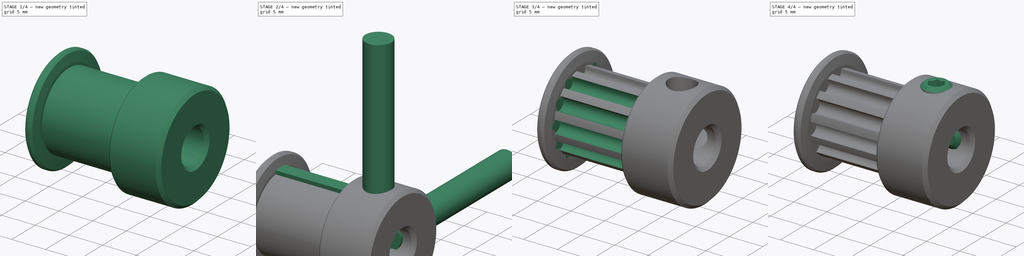
[diagram: build sequence overview — one tinted view per stage of 4, left to right]
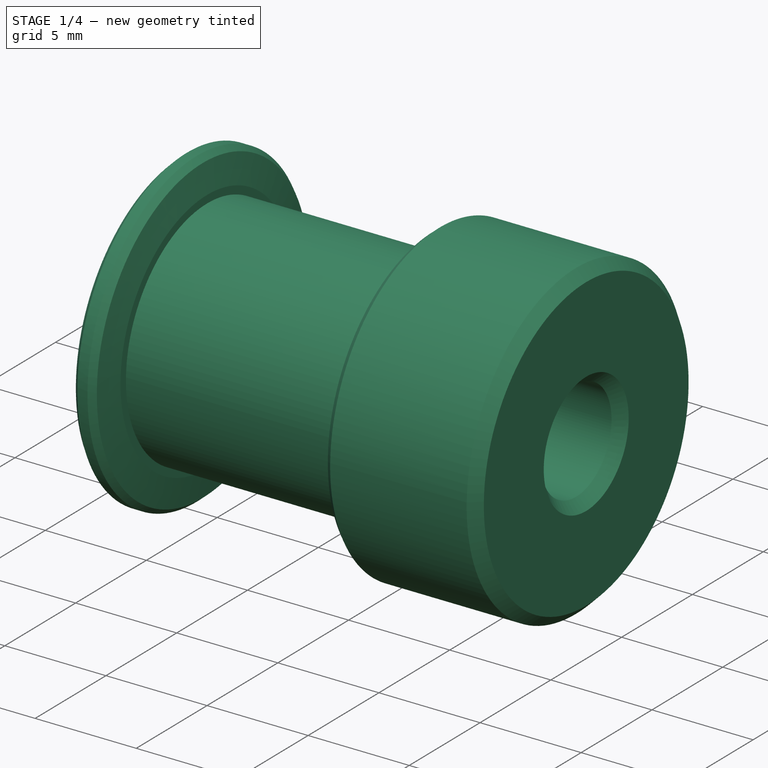
[diagram: stage 1 of 4 — iso view after this stage's code; geometry added in this stage tinted green]
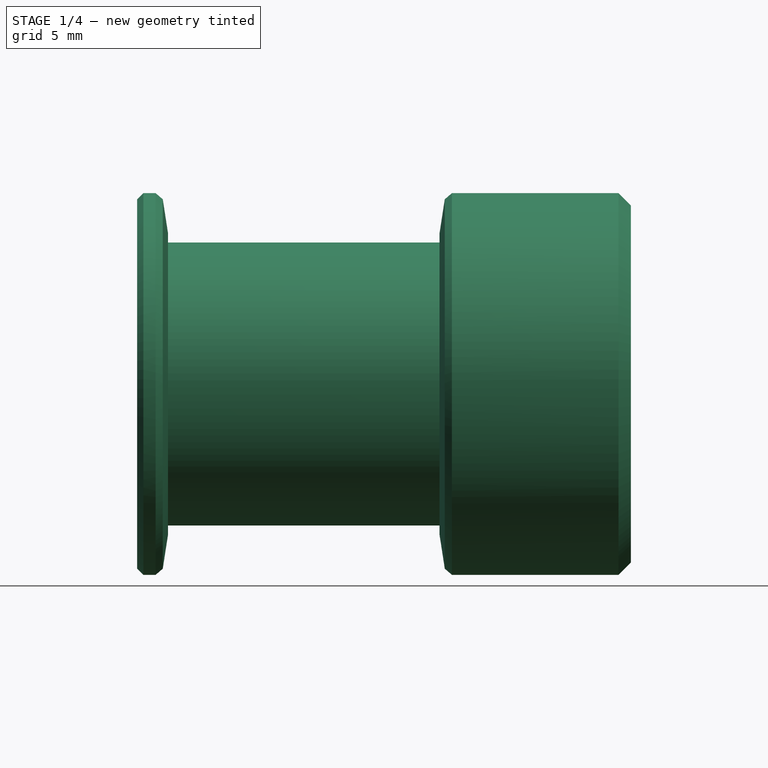
[diagram: stage 1 of 4 — front view after this stage's code; geometry added in this stage tinted green]
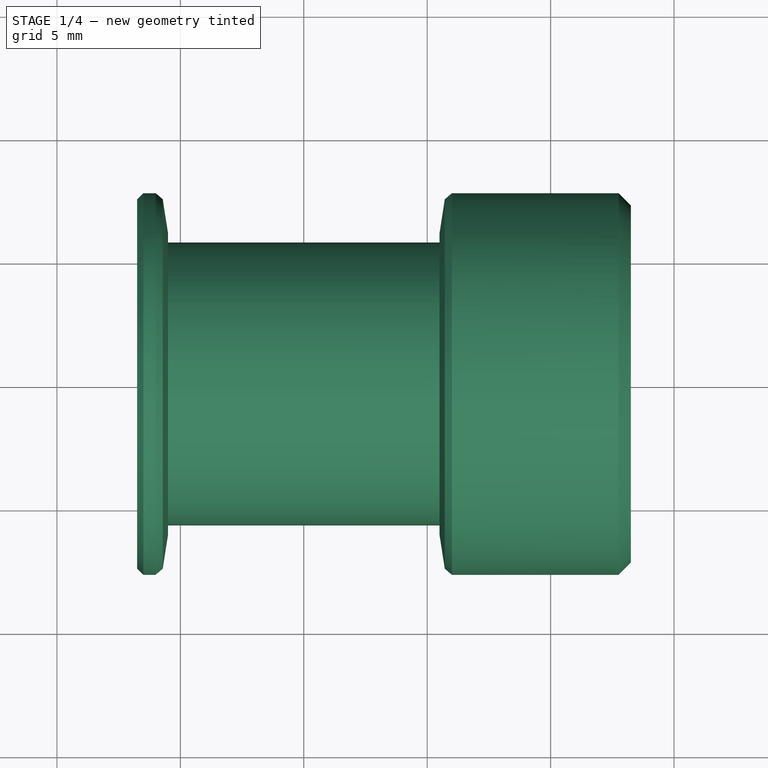
[diagram: stage 1 of 4 — top view after this stage's code; geometry added in this stage tinted green]
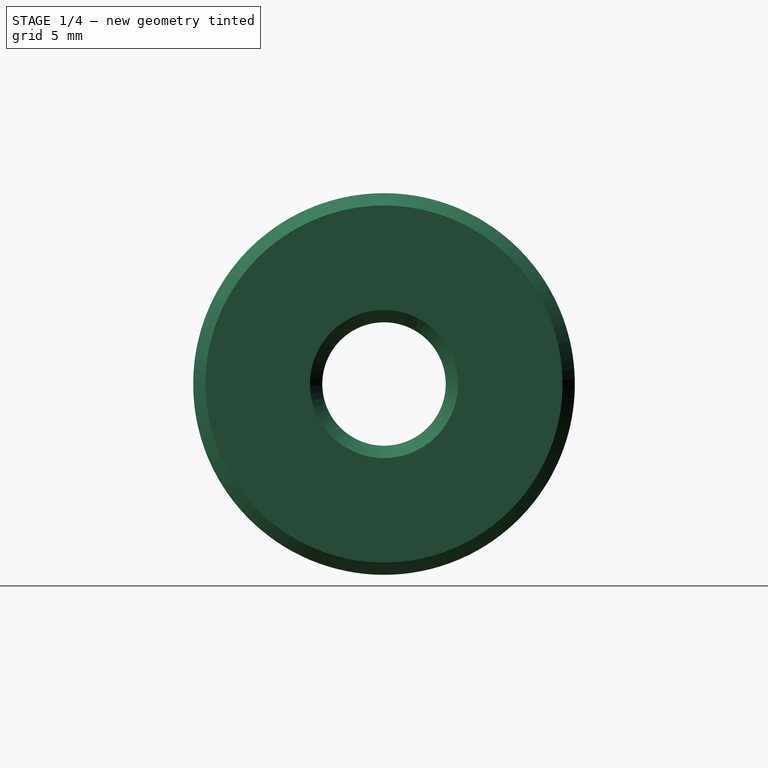
[diagram: stage 1 of 4 — right view after this stage's code; geometry added in this stage tinted green]
FCSTD DOCUMENT  (FreeCAD 0.21R33771 (Git))
Label: HTD 3M 12 Tooth Pulley 5mm Bore
License: All rights reserved
LicenseURL: http://en.wikipedia.org/wiki/All_rights_reserved
objects: Part::FeaturePython×3, Part::Cylinder×2, Sketcher::SketchObject×2, PartDesign::Chamfer×2, PartDesign::Body×2, Part::Cut×2, Part::MultiFuse×1, PartDesign::Revolution×1, PartDesign::Pad×1, Part::Chamfer×1, App::TextDocument×1
note: 21 computed .brp shape members not serialized (recipe doc carries the construction recipe); baked Part::Feature solids carry a one-line shape summary decoded from their .brp

FEATURE [Sketcher::SketchObject] Sketch
  FullyConstrained = true
  MapMode = 5
  Placement = pos=(0,0,0) rot=(1,0,0;1.5708rad)
  Support = -> [XZ_Plane001]
  sketch-geometry (11):
    g0: LineSegment StartX=-6.75 StartY=2.5 StartZ=0 EndX=13.25 EndY=2.5 EndZ=0
    g1: LineSegment StartX=5.5 StartY=5.73 StartZ=0 EndX=-5.5 EndY=5.73 EndZ=0
    g2: LineSegment StartX=-5.75 StartY=7.73 StartZ=0 EndX=-6.75 EndY=7.73 EndZ=0
    g3: LineSegment StartX=-6.75 StartY=7.73 StartZ=0 EndX=-6.75 EndY=2.5 EndZ=0
    g4: LineSegment StartX=-5.5 StartY=6.111 StartZ=0 EndX=5.5 EndY=6.111 EndZ=0
    g5: LineSegment StartX=5.5 StartY=5.73 StartZ=0 EndX=5.5 EndY=6.111 EndZ=0
    g6: LineSegment StartX=5.5 StartY=6.111 StartZ=0 EndX=5.75 EndY=7.73 EndZ=0
    g7: LineSegment StartX=-5.75 StartY=7.73 StartZ=0 EndX=-5.5 EndY=6.111 EndZ=0
    g8: LineSegment StartX=-5.5 StartY=6.111 StartZ=0 EndX=-5.5 EndY=5.73 EndZ=0
    g9: LineSegment StartX=5.75 StartY=7.73 StartZ=0 EndX=13.25 EndY=7.73 EndZ=0
    g10: LineSegment StartX=13.25 StartY=7.73 StartZ=0 EndX=13.25 EndY=2.5 EndZ=0
  constraints (32):
    c: Symmetric(g1,g1,g-2)
    c: Symmetric(g2,g6,g-2)
    c: DistanceY(g-1,g0) = 2.5
    c: DistanceX(g1,g1) = 11
    c: DistanceX(g2,g2) = 1
    c: Coincident(g3,g0)
    c: Vertical(g3)
    c: Horizontal(g4)
    c: Coincident(g5,g1)
    c: Vertical(g5)
    c: Coincident(g6,g5)
    c: Coincident(g4,g5)
    c: Coincident(g7,g2)
    c: Coincident(g8,g7)
    c: Coincident(g8,g1)
    c: Coincident(g4,g7)
    c: Vertical(g8)
    c: DistanceY(g-1,g1) = 5.73
    c: Horizontal(g9)
    c: Coincident(g9,g10)
    c: Vertical(g10)
    c: Horizontal(g0)
    c: Coincident(g0,g10)
    c: DistanceX(g2,g7) = 1.25
    c: DistanceX(g0,g0) = 20
    c: DistanceY(g1,g7) = 0.381
    c: DistanceY(g1,g2) = 2
    c: Coincident(g9,g6)
    c: Coincident(g3,g2)
    c: Horizontal(g2)
    c: DistanceY(g-1,g9) = 7.73
    c: DistanceX(g0,g0) = 20
FEATURE [PartDesign::Revolution] Revolution
  AllowMultiFace = false
  Angle = 360
  Axis = (1,0,0)
  Base = (0,0,0)
  Placement = pos=(0,0,0) rot=(1,0,0;1.5708rad)
  Profile = -> Sketch
  ReferenceAxis = -> Sketch [H_Axis]
FEATURE [PartDesign::Chamfer] Chamfer
  Angle = 45
  Base = -> Revolution [Edge4,Edge5,Edge7]
  BaseFeature = -> Revolution
  ChamferType = 0
  FlipDirection = false
  Placement = pos=(0,0,0) rot=(1,0,0;1.5708rad)
  Size = 0.5
  Size2 = 1
  SupportTransform = false
  UseAllEdges = false
FEATURE [PartDesign::Chamfer] Chamfer002
  Angle = 45
  Base = -> Chamfer [Edge2,Edge5,Edge21]
  BaseFeature = -> Chamfer
  ChamferType = 0
  FlipDirection = false
  Placement = pos=(0,0,0) rot=(1,0,0;1.5708rad)
  Size = 0.25
  Size2 = 1
  SupportTransform = false
  UseAllEdges = false
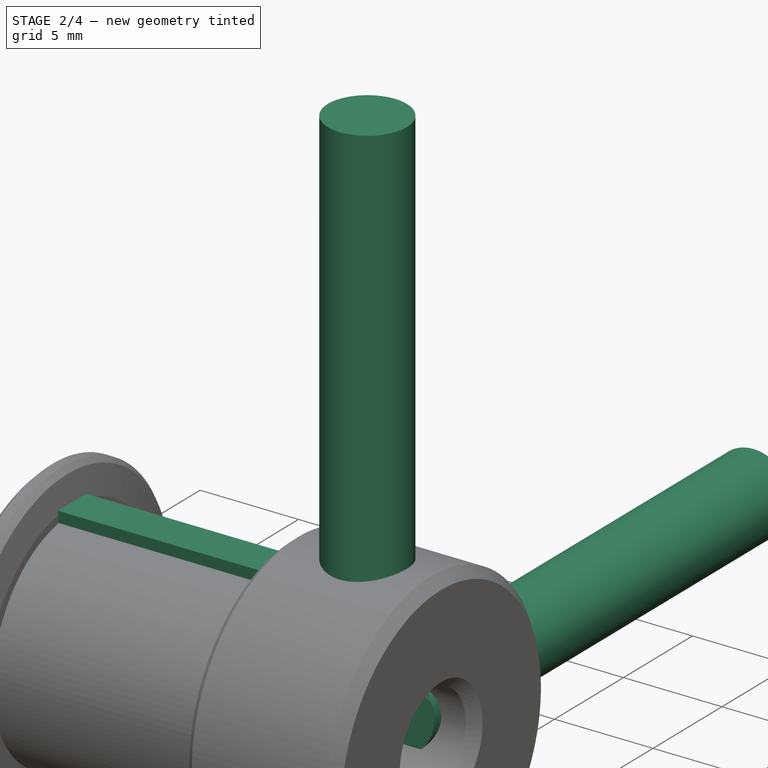
[diagram: stage 2 of 4 — iso view after this stage's code; geometry added in this stage tinted green]
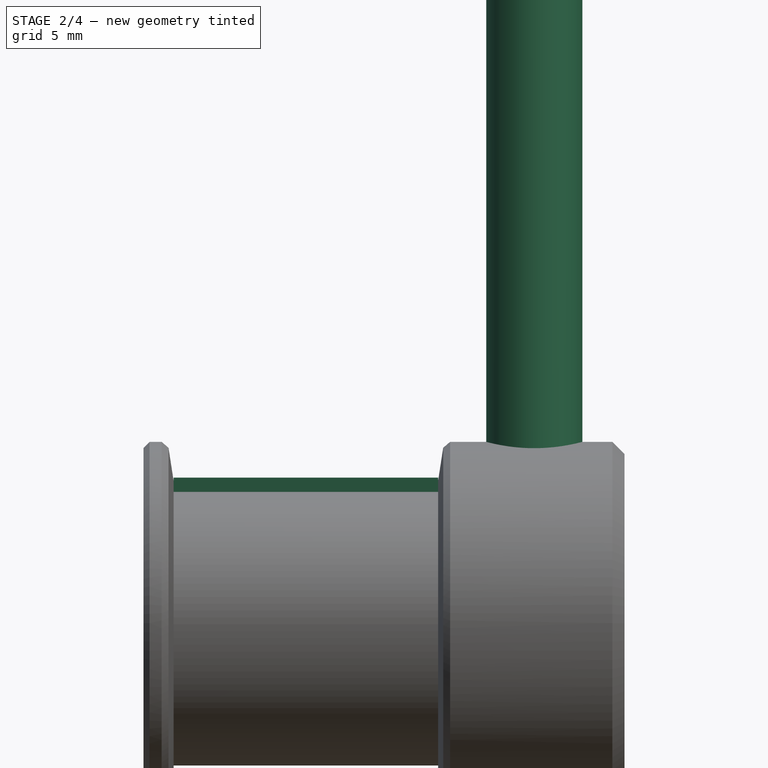
[diagram: stage 2 of 4 — front view after this stage's code; geometry added in this stage tinted green]
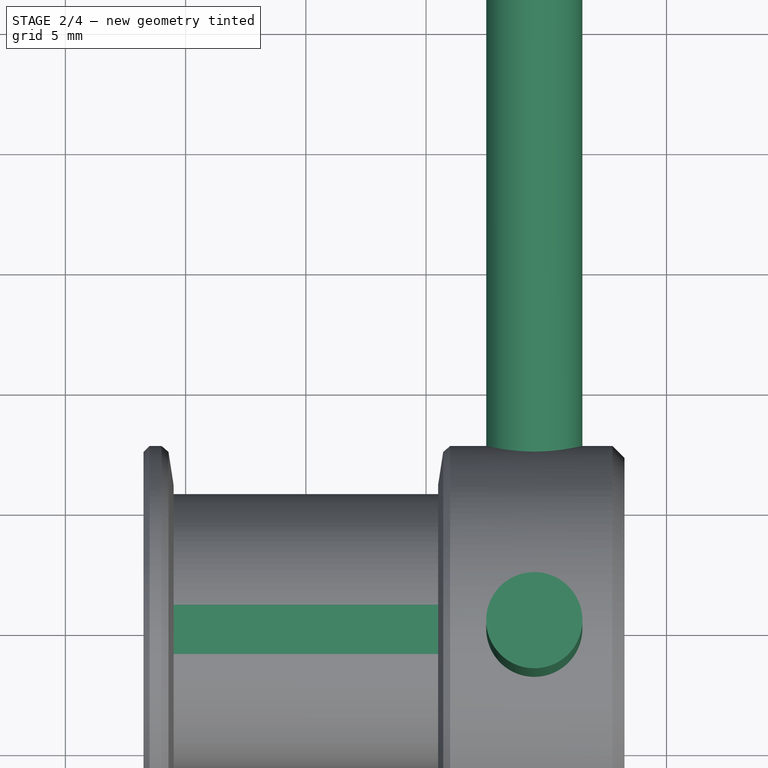
[diagram: stage 2 of 4 — top view after this stage's code; geometry added in this stage tinted green]
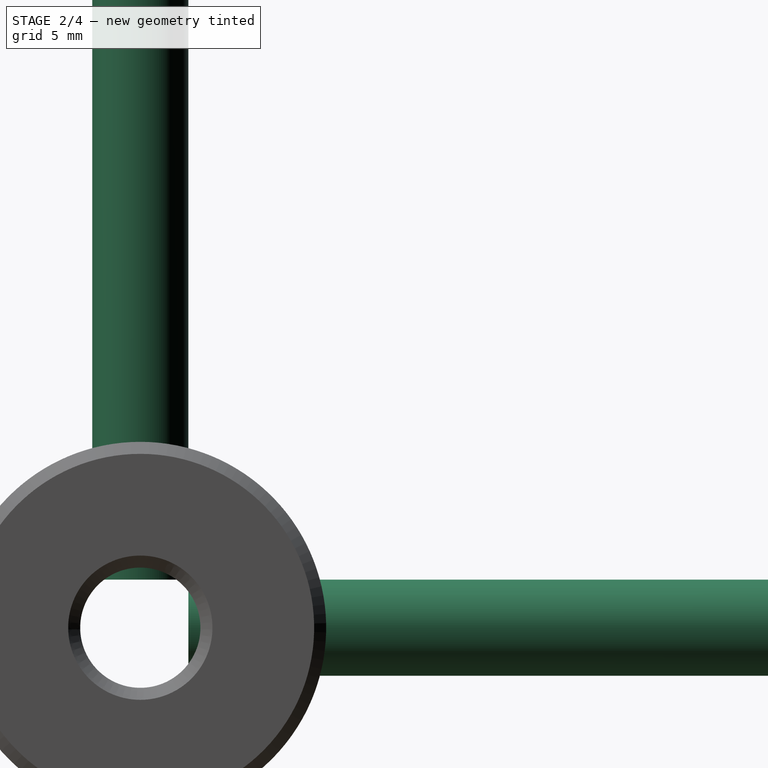
[diagram: stage 2 of 4 — right view after this stage's code; geometry added in this stage tinted green]
FEATURE [Part::Cylinder] Cylinder
  Angle = 360
  AttacherType = Attacher::AttachEngine3D
  FirstAngle = 0
  Height = 26
  Placement = pos=(9.5,0,2) rot=(0,0,1;0rad)
  Radius = 2
  SecondAngle = 0
FEATURE [Part::Cylinder] Cylinder001
  Angle = 360
  AttacherType = Attacher::AttachEngine3D
  FirstAngle = 0
  Height = 26
  Placement = pos=(9.5,2,0) rot=(-1,0,0;1.5708rad)
  Radius = 2
  SecondAngle = 0
FEATURE [Sketcher::SketchObject] Sketch001
  FullyConstrained = true
  MapMode = 5
  Placement = pos=(0,0,0) rot=(0.57735,0.57735,0.57735;2.0944rad)
  Support = -> [YZ_Plane002]
  sketch-geometry (5):
    g0: ArcOfCircle CenterX=0 CenterY=5.36 CenterZ=0 NormalX=0 NormalY=0 NormalZ=1 AngleXU=0 Radius=0.91 StartAngle=3.26377 EndAngle=6.16101
    g1: LineSegment StartX=-0.903217 StartY=5.2491 StartZ=0 EndX=-1.02509 EndY=6.24165 EndZ=0
    g2: LineSegment StartX=-1.02509 StartY=6.24165 StartZ=0 EndX=1.02509 EndY=6.24165 EndZ=0
    g3: LineSegment StartX=1.02509 StartY=6.24165 StartZ=0 EndX=0.903217 EndY=5.2491 EndZ=0
    g4: LineSegment StartX=0 StartY=4.45 StartZ=0 EndX=0 EndY=5.73 EndZ=0
  constraints (14):
    c: PointOnObject(g0,g-2)
    c: Coincident(g2,g1)
    c: Coincident(g3,g2)
    c: Tangent(g0,g3) = 1.5708
    c: Tangent(g0,g1) = 1.5708
    c: Symmetric(g1,g2,g-2)
    c: Angle(g3,g1) = 0.244346
    c: Radius(g0) = 0.91
    c: Distance(g3) = 1
    c: PointOnObject(g4,g0)
    c: Vertical(g4)
    c: PointOnObject(g4,g-2)
    c: DistanceY(g4,g4) = 1.28
    c: DistanceY(g-1,g4) = 5.73
FEATURE [PartDesign::Pad] Pad
  AllowMultiFace = false
  Direction = (1,-2e-16,3e-16)
  Length = 11
  Length2 = 100
  Midplane = true
  Placement = pos=(0,0,0) rot=(0.57735,0.57735,0.57735;2.0944rad)
  Profile = -> Sketch001
  Type = 0
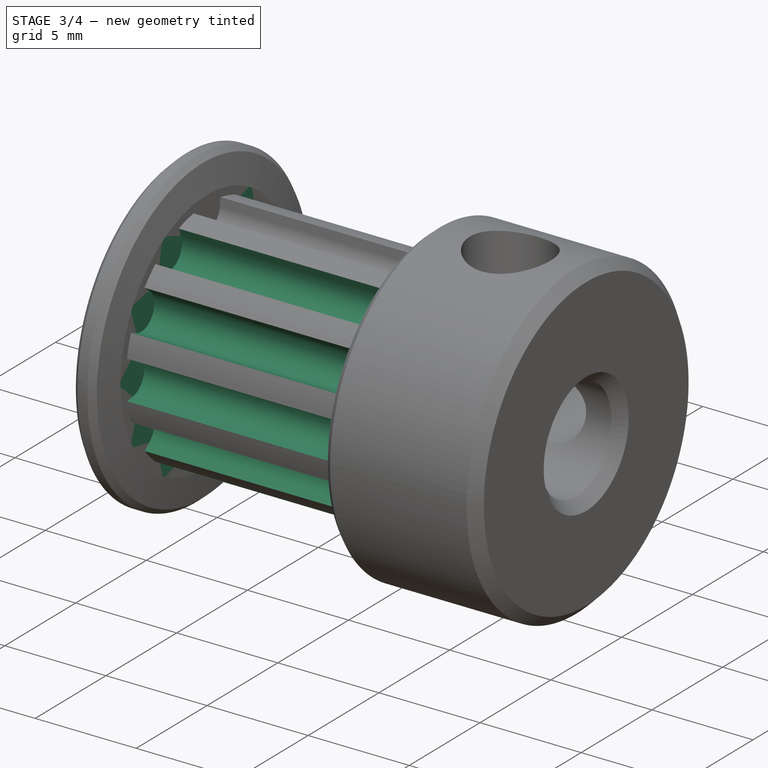
[diagram: stage 3 of 4 — iso view after this stage's code; geometry added in this stage tinted green]
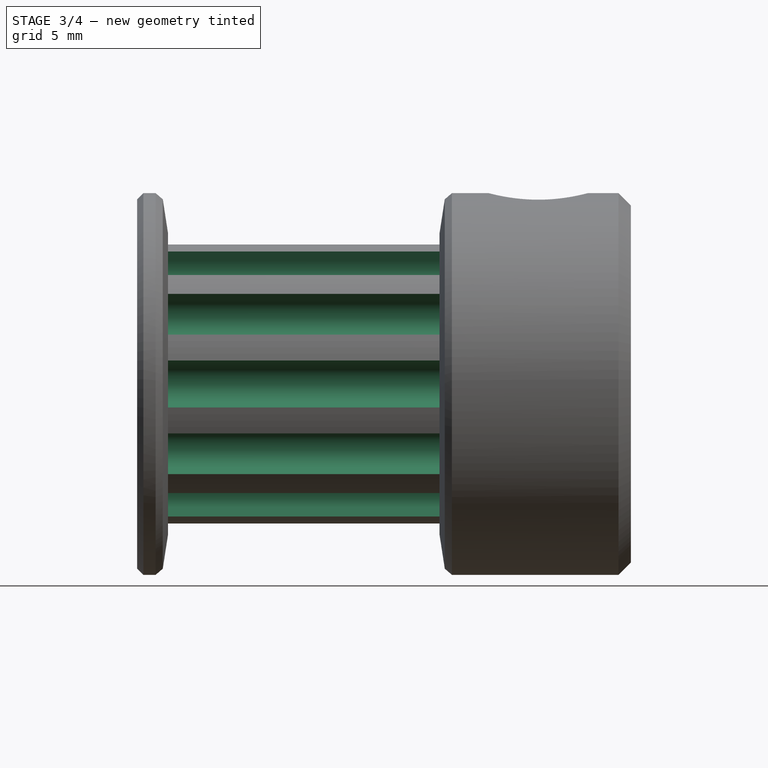
[diagram: stage 3 of 4 — front view after this stage's code; geometry added in this stage tinted green]
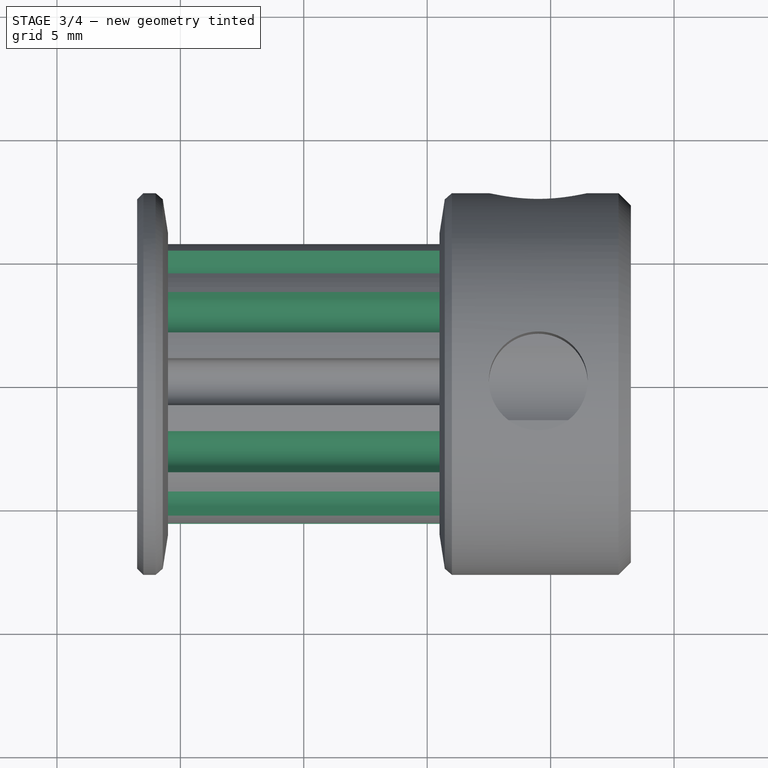
[diagram: stage 3 of 4 — top view after this stage's code; geometry added in this stage tinted green]
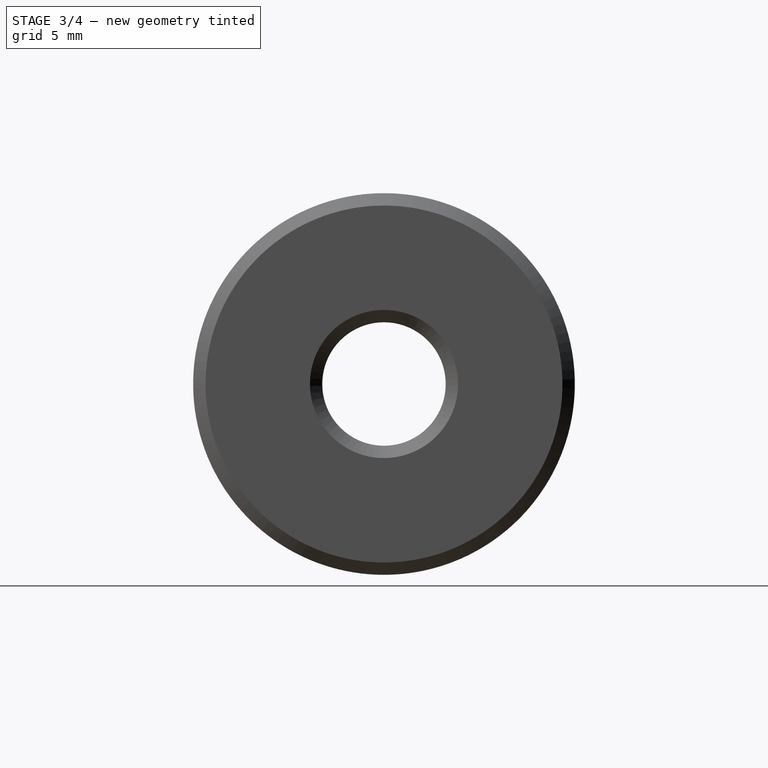
[diagram: stage 3 of 4 — right view after this stage's code; geometry added in this stage tinted green]
FEATURE [Part::MultiFuse] Fusion
  Shapes = -> [Cylinder,Cylinder001]
FEATURE [PartDesign::Body] Body001
  Group = -> [Sketch001,Pad]
  Origin = -> Origin002
  Tip = -> Pad
FEATURE [Part::FeaturePython] Array  # Draft array (typed FeaturePython)
  Angle = 360
  ArrayType = 1
  Axis = (1,0,0)
  Base = -> Body001
  Center = (0,0,0)
  Count = 12
  Fuse = false
  IntervalAxis = (0,0,0)
  IntervalX = (1,0,0)
  IntervalY = (0,1,0)
  IntervalZ = (0,0,1)
  NumberPolar = 12
  NumberX = 2
  NumberY = 2
  NumberZ = 1
FEATURE [PartDesign::Body] Body
  Group = -> [Sketch,Revolution,Chamfer,Chamfer002]
  Origin = -> Origin001
  Tip = -> Chamfer002
FEATURE [Part::Cut] Cut
  Base = -> Body
  Tool = -> Array
FEATURE [Part::Cut] Cut001
  Base = -> Cut
  Refine = true
  Tool = -> Fusion
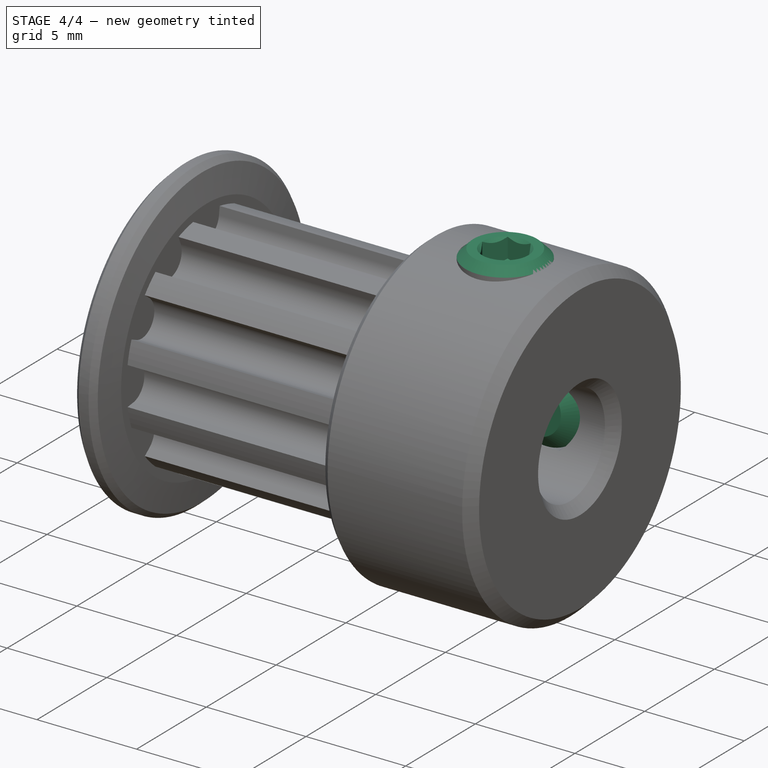
[diagram: stage 4 of 4 — iso view after this stage's code; geometry added in this stage tinted green]
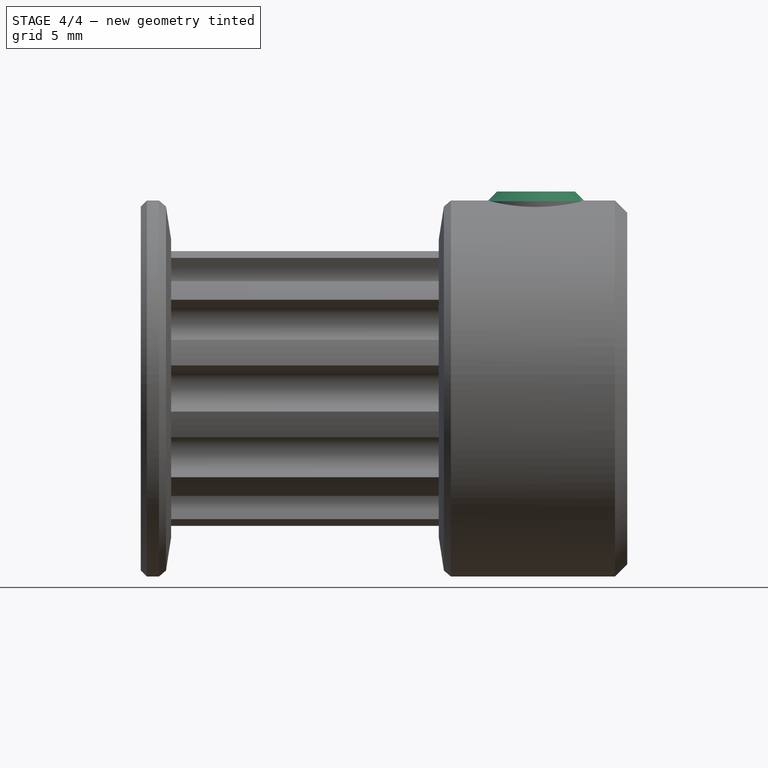
[diagram: stage 4 of 4 — front view after this stage's code; geometry added in this stage tinted green]
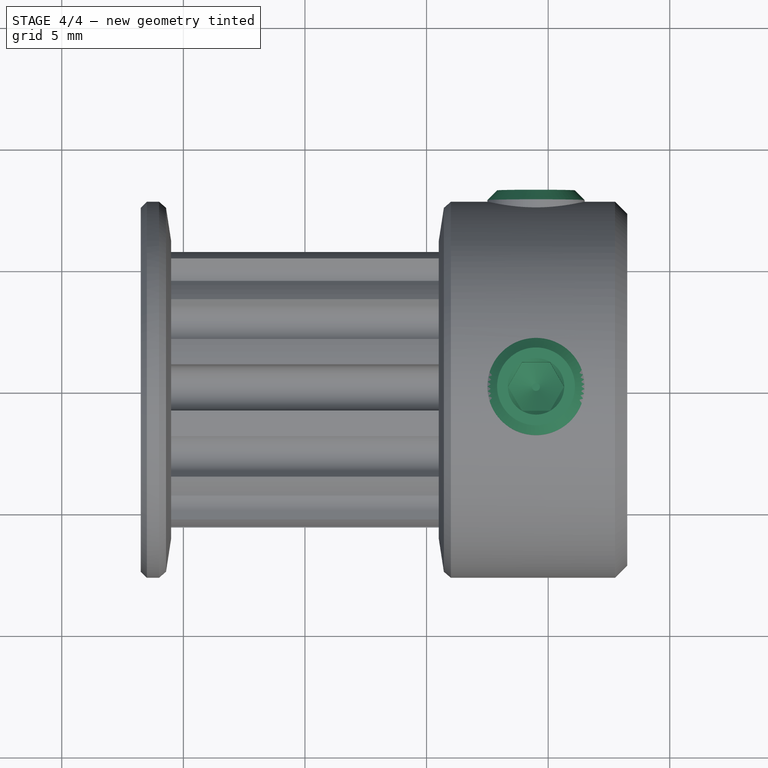
[diagram: stage 4 of 4 — top view after this stage's code; geometry added in this stage tinted green]
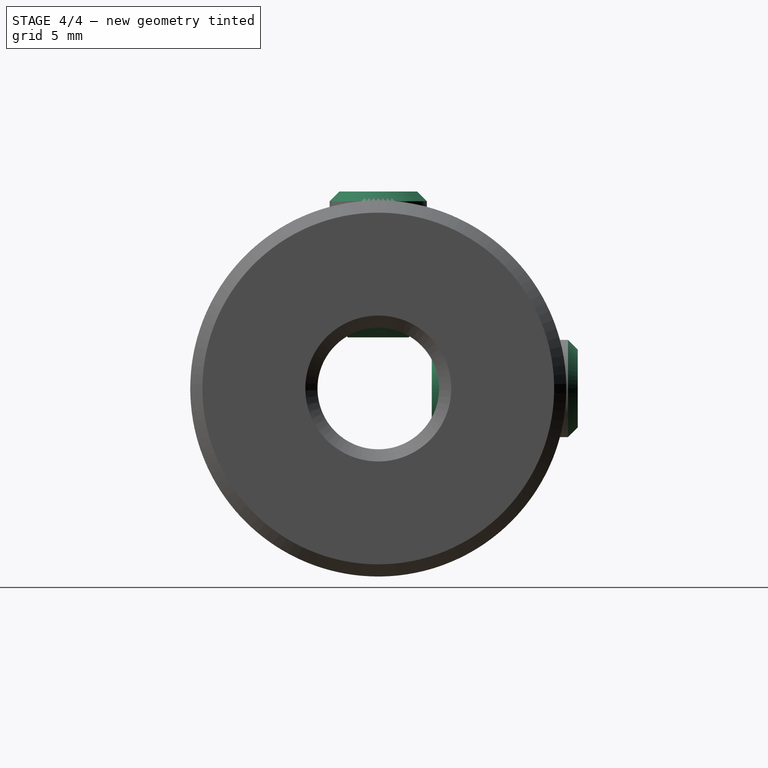
[diagram: stage 4 of 4 — right view after this stage's code; geometry added in this stage tinted green]
FEATURE [Part::FeaturePython] Screw  label="M4x6-Screw"  # Fasteners workbench fastener (typed FeaturePython)
  Placement = pos=(9.5,0,8.1) rot=(0,0,1;0rad)
  diameter = 7
  invert = false
  leftHanded = false
  length = 2
  lengthCustom = 6
  matchOuter = false
  offset = 0
  thread = false
  type = 28
FEATURE [Part::FeaturePython] Screw001  label="M4x6-Screw001"  # Fasteners workbench fastener (typed FeaturePython)
  Placement = pos=(9.5,8.2,-1e-15) rot=(-1,0,0;1.5708rad)
  diameter = 7
  invert = false
  leftHanded = false
  length = 2
  lengthCustom = 6
  matchOuter = false
  offset = 0
  thread = false
  type = 28
FEATURE [Part::Chamfer] Chamfer001
  Base = -> Cut001
  Edges = 2 edges r=0.5: [Edge18,Edge23]
FEATURE [App::TextDocument] Text_document  label="AliExpress Link"
  Text = AliExpress Link\nhttps://www.aliexpress.us/item/3256806527413879.html?spm=a2g0o.productlist.main.19.786bD58FD58Fji&algo_pvid=2732ac4b-999e-4dbe-96f4-ba85e83c0175&algo_exp_id=2732ac4b-999e-4dbe-96f4-ba85e83c0175-9&pdp_npi=4%40dis%21USD%212.48%211.86%21%21%2118.00%2113.50%21%402103080817207148508602065e54ac%2112000038075640135%21sea%21US%210%21ABX&curPageLogUid=Ug2Riw0kbSnN&utparam-url=scene%3Asearch%7Cquery_from%3A
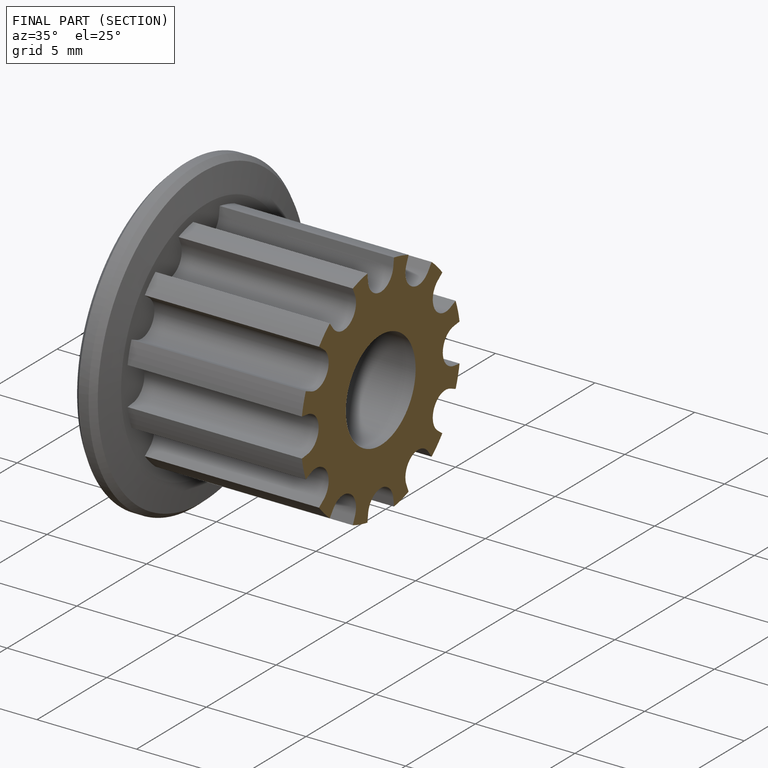
[diagram: finished part — half-section view (interior)]
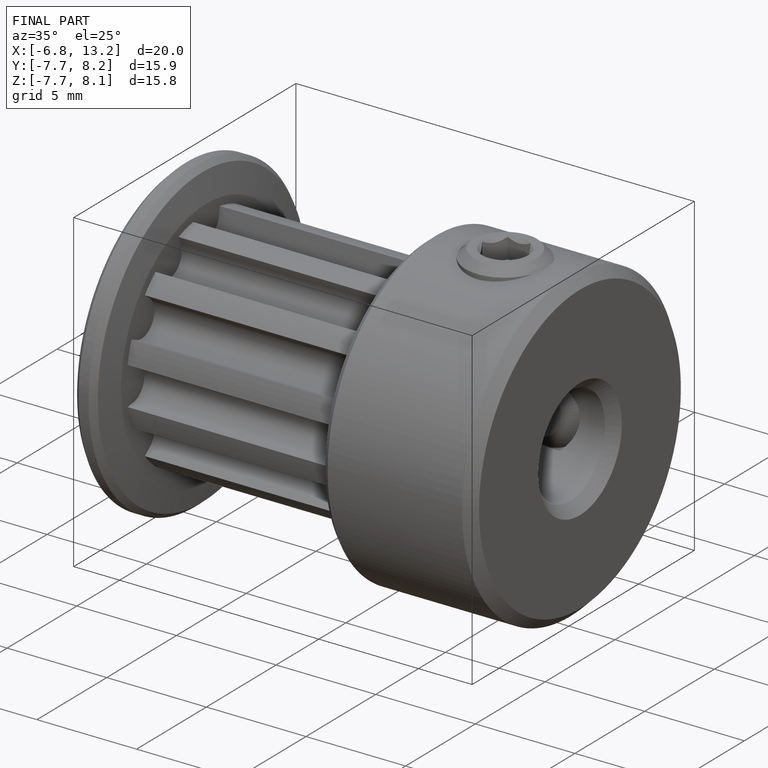
[diagram: finished part — iso view with bounding-box wireframe]
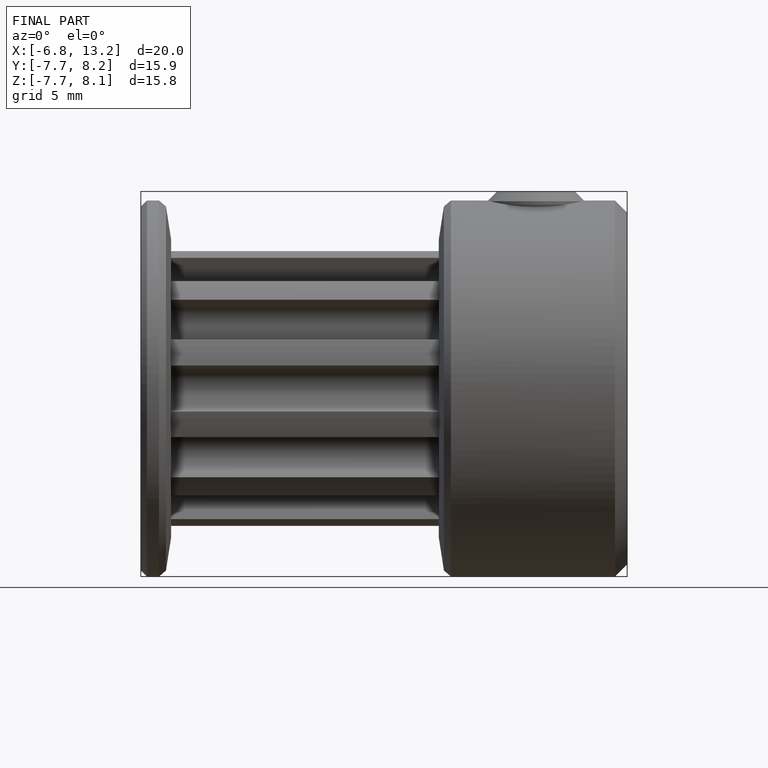
[diagram: finished part — front view with bounding-box wireframe]
